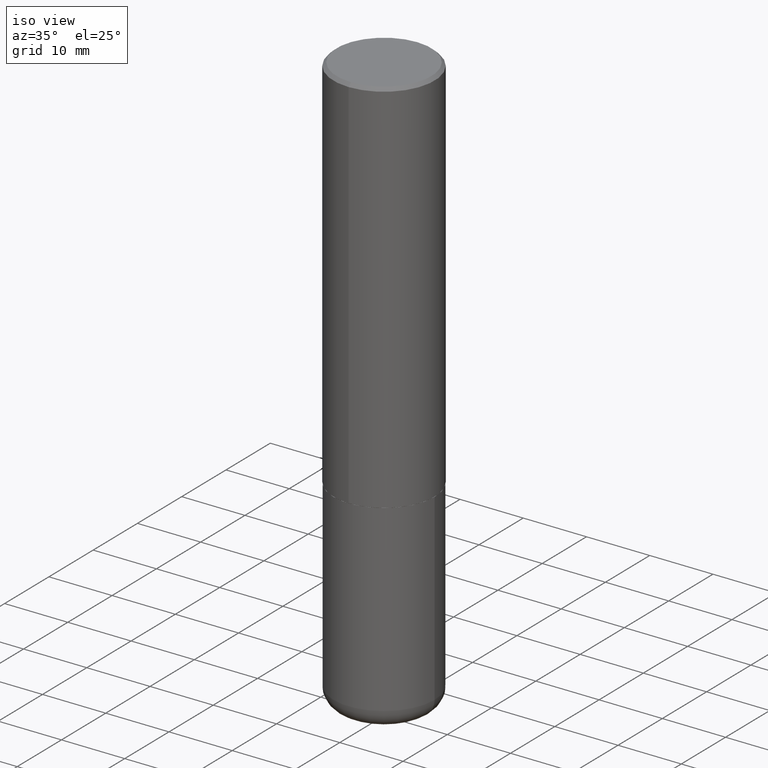
[diagram: clean part render]
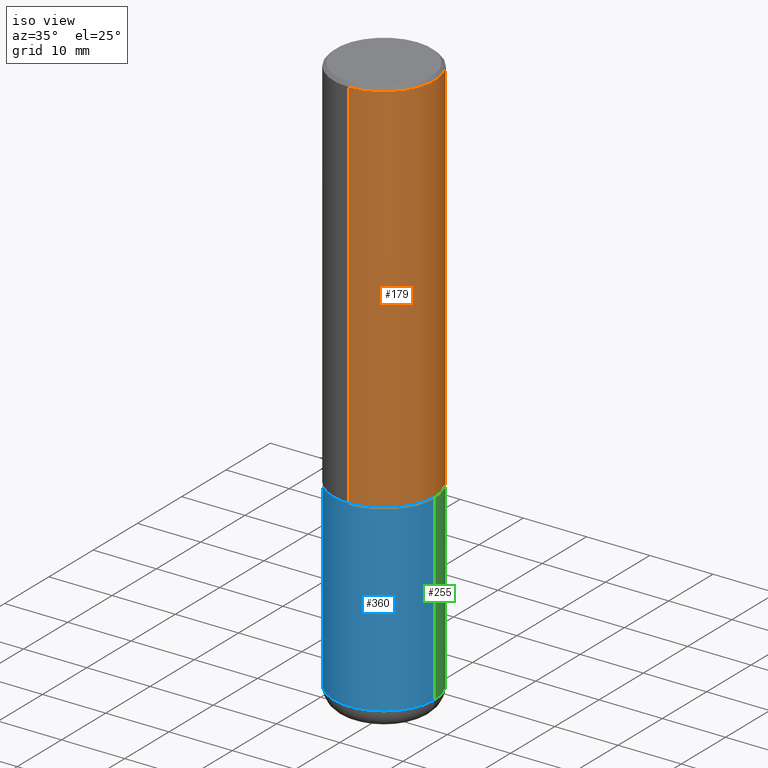
[diagram: same view with three faces highlighted in distinct colors, each labeled with its STEP entity id]
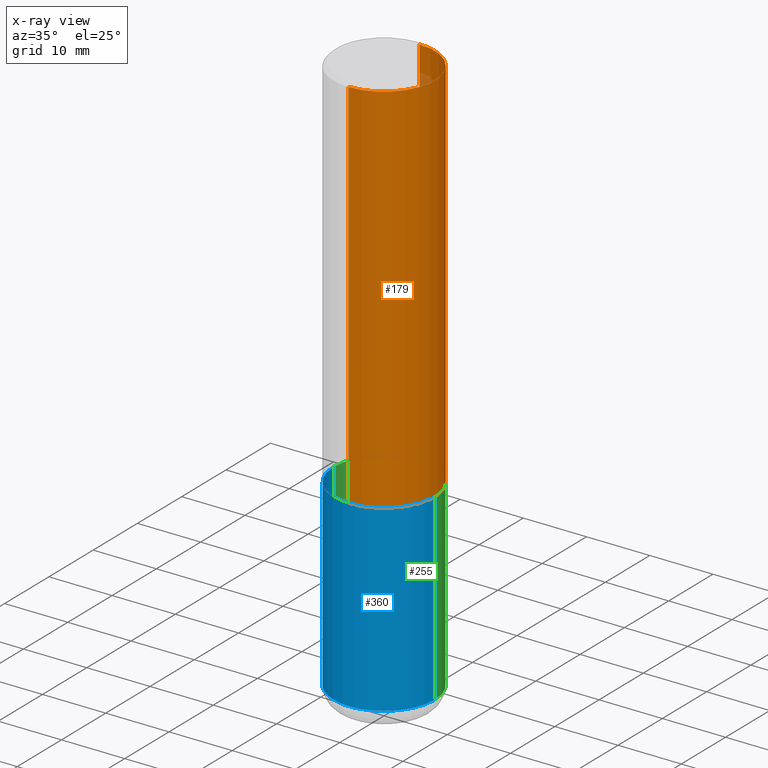
[diagram: x-ray of the same camera — body ghosted, the three highlighted faces saturated]
A machine part, iso view with three faces highlighted in distinct colors.
The next image is the same camera in x-ray (body ghosted, the three faces saturated) — at least one of them is partly hidden behind the body in this view.
Their STEP definitions:

[orange] entity #179 — the highlighted cylindrical surface (partial cylindrical patch) has radius 7.9997 mm, axis along (-0, 0, 1).
#2 = CARTESIAN_POINT ( 'NONE',  ( 4.893464128848368385E-31, -6.979344562289319109E-17, -0.02000000000000006981 ) ) ;
#5 = ORIENTED_EDGE ( 'NONE', *, *, #223, .F. ) ;
#12 = DIRECTION ( 'NONE',  ( -6.982962677686265922E-15, -1.000000000000000000, 3.483117034309591132E-15 ) ) ;
#21 = DIRECTION ( 'NONE',  ( -2.446732064424175452E-29, 3.489672281144647968E-15, 1.000000000000000000 ) ) ;
#48 = CARTESIAN_POINT ( 'NONE',  ( -2.160713844398143363E-15, -0.3149500000000000632, -0.01999999999999896999 ) ) ;
#52 = AXIS2_PLACEMENT_3D ( 'NONE', #2, #399, #12 ) ;
#54 = CARTESIAN_POINT ( 'NONE',  ( 2.237854346276435985E-15, 0.3149500000000001743, -1.099072284946507453E-15 ) ) ;
#60 = CARTESIAN_POINT ( 'NONE',  ( -2.199284095337233467E-15, -0.3149500000000085564, -2.361199999999998411 ) ) ;
#67 = CIRCLE ( 'NONE', #133, 0.3149500000000002853 ) ;
#78 = VERTEX_POINT ( 'NONE', #60 ) ;
#90 = LINE ( 'NONE', #54, #357 ) ;
#96 = EDGE_CURVE ( 'NONE', #193, #196, #90, .T. ) ;
#133 = AXIS2_PLACEMENT_3D ( 'NONE', #302, #21, #254 ) ;
#145 = LINE ( 'NONE', #276, #339 ) ;
#179 = ADVANCED_FACE ( 'NONE', ( #221 ), #241, .T. ) ;
#191 = DIRECTION ( 'NONE',  ( -2.446732064424175452E-29, 3.489672281144648363E-15, 1.000000000000000000 ) ) ;
#193 = VERTEX_POINT ( 'NONE', #381 ) ;
#196 = VERTEX_POINT ( 'NONE', #267 ) ;
#220 = CIRCLE ( 'NONE', #52, 0.3149500000000000077 ) ;
#221 = FACE_OUTER_BOUND ( 'NONE', #329, .T. ) ;
#222 = ORIENTED_EDGE ( 'NONE', *, *, #410, .T. ) ;
#223 = EDGE_CURVE ( 'NONE', #310, #196, #220, .T. ) ;
#233 = AXIS2_PLACEMENT_3D ( 'NONE', #283, #294, #402 ) ;
#241 = CYLINDRICAL_SURFACE ( 'NONE', #233, 0.3149500000000001743 ) ;
#254 = DIRECTION ( 'NONE',  ( -6.982962677686265922E-15, -1.000000000000000000, 3.469564049740290009E-15 ) ) ;
#267 = CARTESIAN_POINT ( 'NONE',  ( 2.199284095337289871E-15, 0.3149499999999999522, -0.02000000000000116615 ) ) ;
#276 = CARTESIAN_POINT ( 'NONE',  ( -2.199284095337290265E-15, -0.3149500000000001743, 1.099072284946507453E-15 ) ) ;
#283 = CARTESIAN_POINT ( 'NONE',  ( 0.000000000000000000, 0.000000000000000000, 0.000000000000000000 ) ) ;
#294 = DIRECTION ( 'NONE',  ( -2.446732064424175452E-29, 3.489672281144647968E-15, 1.000000000000000000 ) ) ;
#302 = CARTESIAN_POINT ( 'NONE',  ( 5.777223750518362448E-29, -8.239814190238740974E-15, -2.361199999999999743 ) ) ;
#310 = VERTEX_POINT ( 'NONE', #48 ) ;
#316 = ORIENTED_EDGE ( 'NONE', *, *, #96, .T. ) ;
#329 = EDGE_LOOP ( 'NONE', ( #222, #316, #5, #406 ) ) ;
#339 = VECTOR ( 'NONE', #405, 39.37007874015748143 ) ;
#357 = VECTOR ( 'NONE', #191, 39.37007874015748143 ) ;
#366 = EDGE_CURVE ( 'NONE', #78, #310, #145, .T. ) ;
#381 = CARTESIAN_POINT ( 'NONE',  ( 2.237854346276465567E-15, 0.3149499999999920141, -2.361200000000000632 ) ) ;
#399 = DIRECTION ( 'NONE',  ( -2.446732064424175452E-29, 3.489672281144647968E-15, 1.000000000000000000 ) ) ;
#402 = DIRECTION ( 'NONE',  ( -6.982962677686264344E-15, -1.000000000000000000, 3.489672281144647968E-15 ) ) ;
#405 = DIRECTION ( 'NONE',  ( -2.446732064424175452E-29, 3.489672281144648363E-15, 1.000000000000000000 ) ) ;
#406 = ORIENTED_EDGE ( 'NONE', *, *, #366, .F. ) ;
#410 = EDGE_CURVE ( 'NONE', #78, #193, #67, .T. ) ;

[blue] entity #360 — the highlighted cylindrical surface (partial cylindrical patch) has radius 7.9997 mm, axis along (-0, 0, 1).
#7 = CARTESIAN_POINT ( 'NONE',  ( -0.3149500000000000077, 2.237854346276435590E-15, -1.549218606675782676E-29 ) ) ;
#14 = FACE_OUTER_BOUND ( 'NONE', #392, .T. ) ;
#16 = DIRECTION ( 'NONE',  ( -2.445468806185136877E-29, 3.491481338843145188E-15, 1.000000000000000000 ) ) ;
#34 = CARTESIAN_POINT ( 'NONE',  ( 5.776686413970529753E-29, -8.247577218615278049E-15, -2.362199999999999633 ) ) ;
#36 = ORIENTED_EDGE ( 'NONE', *, *, #149, .F. ) ;
#44 = ORIENTED_EDGE ( 'NONE', *, *, #69, .T. ) ;
#49 = VERTEX_POINT ( 'NONE', #148 ) ;
#51 = VERTEX_POINT ( 'NONE', #277 ) ;
#57 = CARTESIAN_POINT ( 'NONE',  ( 8.568678149992099474E-29, -1.223380146317249786E-14, -3.503899999999999793 ) ) ;
#69 = EDGE_CURVE ( 'NONE', #82, #49, #232, .T. ) ;
#82 = VERTEX_POINT ( 'NONE', #153 ) ;
#97 = VECTOR ( 'NONE', #16, 39.37007874015748143 ) ;
#108 = ORIENTED_EDGE ( 'NONE', *, *, #352, .T. ) ;
#110 = AXIS2_PLACEMENT_3D ( 'NONE', #245, #342, #174 ) ;
#113 = CARTESIAN_POINT ( 'NONE',  ( -0.3149500000000000077, -8.002834994617451969E-15, -2.362199999999999633 ) ) ;
#143 = LINE ( 'NONE', #7, #295 ) ;
#146 = CIRCLE ( 'NONE', #313, 0.3149500000000000077 ) ;
#148 = CARTESIAN_POINT ( 'NONE',  ( 0.3149500000000000077, -1.443308555850978615E-14, -3.503899999999999793 ) ) ;
#149 = EDGE_CURVE ( 'NONE', #372, #51, #146, .T. ) ;
#153 = CARTESIAN_POINT ( 'NONE',  ( -0.3149500000000000077, -9.995947116896063452E-15, -3.503899999999999793 ) ) ;
#174 = DIRECTION ( 'NONE',  ( 1.000000000000000000, -6.982962677686266711E-15, 4.876176775795936353E-29 ) ) ;
#185 = DIRECTION ( 'NONE',  ( -2.445468806185136597E-29, 3.491481338843145583E-15, 1.000000000000000000 ) ) ;
#202 = AXIS2_PLACEMENT_3D ( 'NONE', #57, #185, #349 ) ;
#204 = DIRECTION ( 'NONE',  ( -2.445468806185136877E-29, 3.491481338843145188E-15, 1.000000000000000000 ) ) ;
#232 = CIRCLE ( 'NONE', #202, 0.3149500000000000077 ) ;
#234 = LINE ( 'NONE', #306, #97 ) ;
#235 = DIRECTION ( 'NONE',  ( -2.445468806185136597E-29, 3.491481338843145583E-15, 1.000000000000000000 ) ) ;
#245 = CARTESIAN_POINT ( 'NONE',  ( 0.000000000000000000, 0.000000000000000000, 0.000000000000000000 ) ) ;
#246 = ORIENTED_EDGE ( 'NONE', *, *, #280, .F. ) ;
#252 = DIRECTION ( 'NONE',  ( 1.000000000000000000, -6.982962677686266711E-15, 0.000000000000000000 ) ) ;
#271 = CYLINDRICAL_SURFACE ( 'NONE', #110, 0.3149500000000000077 ) ;
#277 = CARTESIAN_POINT ( 'NONE',  ( 0.3149500000000000077, -1.044686131395256792E-14, -2.362199999999999633 ) ) ;
#280 = EDGE_CURVE ( 'NONE', #82, #372, #143, .T. ) ;
#295 = VECTOR ( 'NONE', #204, 39.37007874015748143 ) ;
#306 = CARTESIAN_POINT ( 'NONE',  ( 0.3149500000000000077, -2.199284095337289871E-15, 1.535751875536930130E-29 ) ) ;
#313 = AXIS2_PLACEMENT_3D ( 'NONE', #34, #235, #252 ) ;
#342 = DIRECTION ( 'NONE',  ( -2.445468806185136597E-29, 3.491481338843145583E-15, 1.000000000000000000 ) ) ;
#349 = DIRECTION ( 'NONE',  ( 1.000000000000000000, -6.982962677686263555E-15, 0.000000000000000000 ) ) ;
#352 = EDGE_CURVE ( 'NONE', #49, #51, #234, .T. ) ;
#360 = ADVANCED_FACE ( 'NONE', ( #14 ), #271, .T. ) ;
#372 = VERTEX_POINT ( 'NONE', #113 ) ;
#392 = EDGE_LOOP ( 'NONE', ( #246, #44, #108, #36 ) ) ;

[green] entity #255 — the highlighted cylindrical surface (partial cylindrical patch) has radius 7.9997 mm, axis along (-0, 0, 1).
#7 = CARTESIAN_POINT ( 'NONE',  ( -0.3149500000000000077, 2.237854346276435590E-15, -1.549218606675782676E-29 ) ) ;
#13 = ORIENTED_EDGE ( 'NONE', *, *, #380, .T. ) ;
#16 = DIRECTION ( 'NONE',  ( -2.445468806185136877E-29, 3.491481338843145188E-15, 1.000000000000000000 ) ) ;
#49 = VERTEX_POINT ( 'NONE', #148 ) ;
#51 = VERTEX_POINT ( 'NONE', #277 ) ;
#75 = DIRECTION ( 'NONE',  ( -2.445468806185136597E-29, 3.491481338843145583E-15, 1.000000000000000000 ) ) ;
#79 = DIRECTION ( 'NONE',  ( 1.000000000000000000, -6.982962677686266711E-15, 0.000000000000000000 ) ) ;
#81 = DIRECTION ( 'NONE',  ( -2.445468806185136597E-29, 3.491481338843145583E-15, 1.000000000000000000 ) ) ;
#82 = VERTEX_POINT ( 'NONE', #153 ) ;
#97 = VECTOR ( 'NONE', #16, 39.37007874015748143 ) ;
#104 = CYLINDRICAL_SURFACE ( 'NONE', #242, 0.3149500000000000077 ) ;
#113 = CARTESIAN_POINT ( 'NONE',  ( -0.3149500000000000077, -8.002834994617451969E-15, -2.362199999999999633 ) ) ;
#135 = ORIENTED_EDGE ( 'NONE', *, *, #352, .F. ) ;
#140 = ORIENTED_EDGE ( 'NONE', *, *, #280, .T. ) ;
#143 = LINE ( 'NONE', #7, #295 ) ;
#144 = EDGE_LOOP ( 'NONE', ( #13, #140, #229, #135 ) ) ;
#148 = CARTESIAN_POINT ( 'NONE',  ( 0.3149500000000000077, -1.443308555850978615E-14, -3.503899999999999793 ) ) ;
#153 = CARTESIAN_POINT ( 'NONE',  ( -0.3149500000000000077, -9.995947116896063452E-15, -3.503899999999999793 ) ) ;
#163 = AXIS2_PLACEMENT_3D ( 'NONE', #370, #268, #79 ) ;
#166 = CARTESIAN_POINT ( 'NONE',  ( 0.000000000000000000, 0.000000000000000000, 0.000000000000000000 ) ) ;
#204 = DIRECTION ( 'NONE',  ( -2.445468806185136877E-29, 3.491481338843145188E-15, 1.000000000000000000 ) ) ;
#208 = DIRECTION ( 'NONE',  ( 1.000000000000000000, -6.982962677686263555E-15, 0.000000000000000000 ) ) ;
#229 = ORIENTED_EDGE ( 'NONE', *, *, #293, .F. ) ;
#234 = LINE ( 'NONE', #306, #97 ) ;
#242 = AXIS2_PLACEMENT_3D ( 'NONE', #166, #75, #243 ) ;
#243 = DIRECTION ( 'NONE',  ( 1.000000000000000000, -6.982962677686266711E-15, 4.876176775795936353E-29 ) ) ;
#255 = ADVANCED_FACE ( 'NONE', ( #333 ), #104, .T. ) ;
#266 = AXIS2_PLACEMENT_3D ( 'NONE', #375, #81, #208 ) ;
#268 = DIRECTION ( 'NONE',  ( -2.445468806185136597E-29, 3.491481338843145583E-15, 1.000000000000000000 ) ) ;
#277 = CARTESIAN_POINT ( 'NONE',  ( 0.3149500000000000077, -1.044686131395256792E-14, -2.362199999999999633 ) ) ;
#280 = EDGE_CURVE ( 'NONE', #82, #372, #143, .T. ) ;
#293 = EDGE_CURVE ( 'NONE', #51, #372, #378, .T. ) ;
#295 = VECTOR ( 'NONE', #204, 39.37007874015748143 ) ;
#306 = CARTESIAN_POINT ( 'NONE',  ( 0.3149500000000000077, -2.199284095337289871E-15, 1.535751875536930130E-29 ) ) ;
#333 = FACE_OUTER_BOUND ( 'NONE', #144, .T. ) ;
#352 = EDGE_CURVE ( 'NONE', #49, #51, #234, .T. ) ;
#354 = CIRCLE ( 'NONE', #266, 0.3149500000000000077 ) ;
#370 = CARTESIAN_POINT ( 'NONE',  ( 5.776686413970529753E-29, -8.247577218615278049E-15, -2.362199999999999633 ) ) ;
#372 = VERTEX_POINT ( 'NONE', #113 ) ;
#375 = CARTESIAN_POINT ( 'NONE',  ( 8.568678149992099474E-29, -1.223380146317249786E-14, -3.503899999999999793 ) ) ;
#378 = CIRCLE ( 'NONE', #163, 0.3149500000000000077 ) ;
#380 = EDGE_CURVE ( 'NONE', #49, #82, #354, .T. ) ;